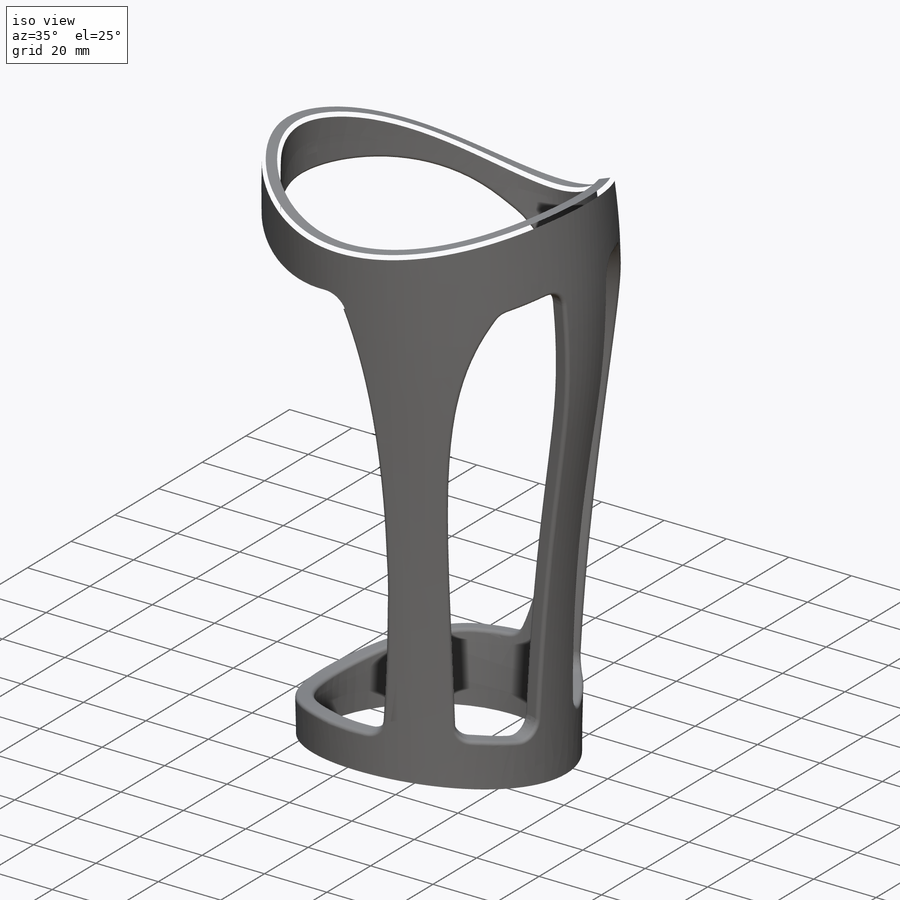
[diagram: iso view]
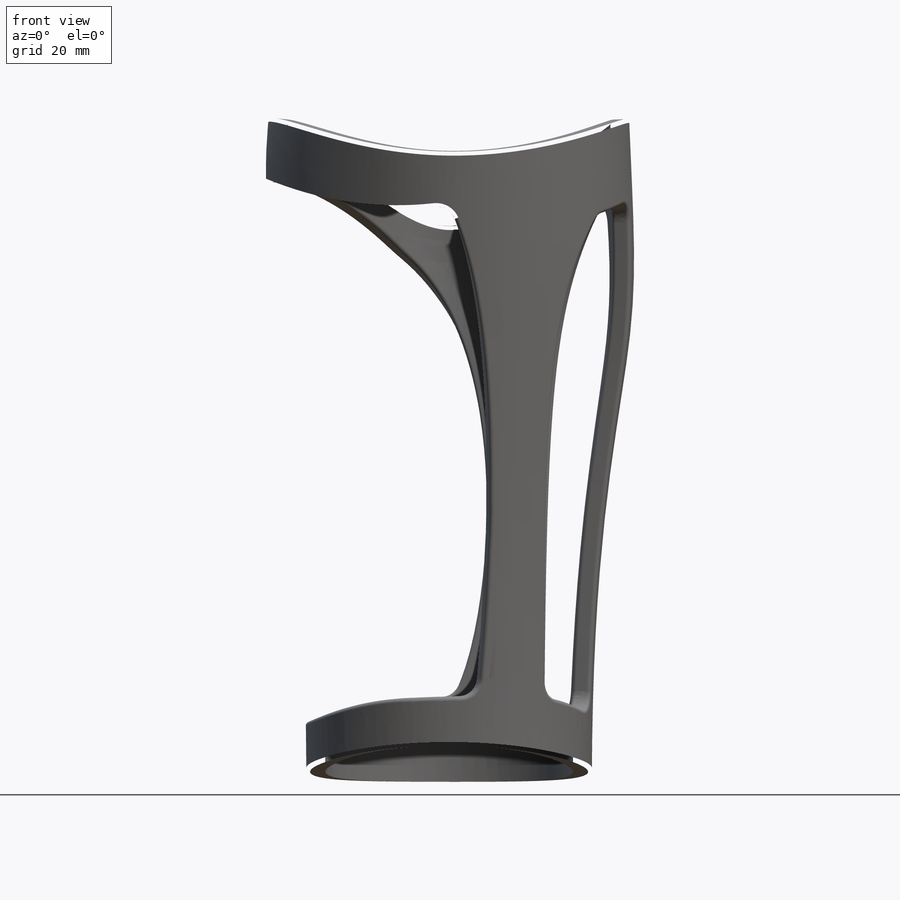
[diagram: front view]
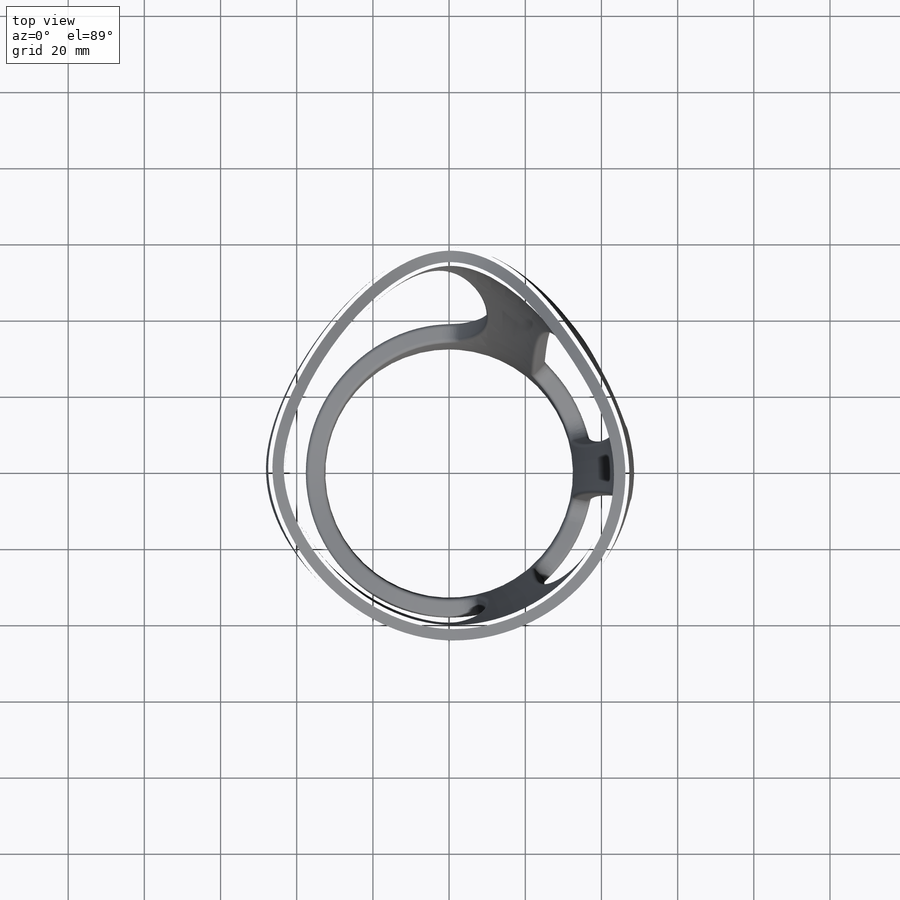
[diagram: top view]
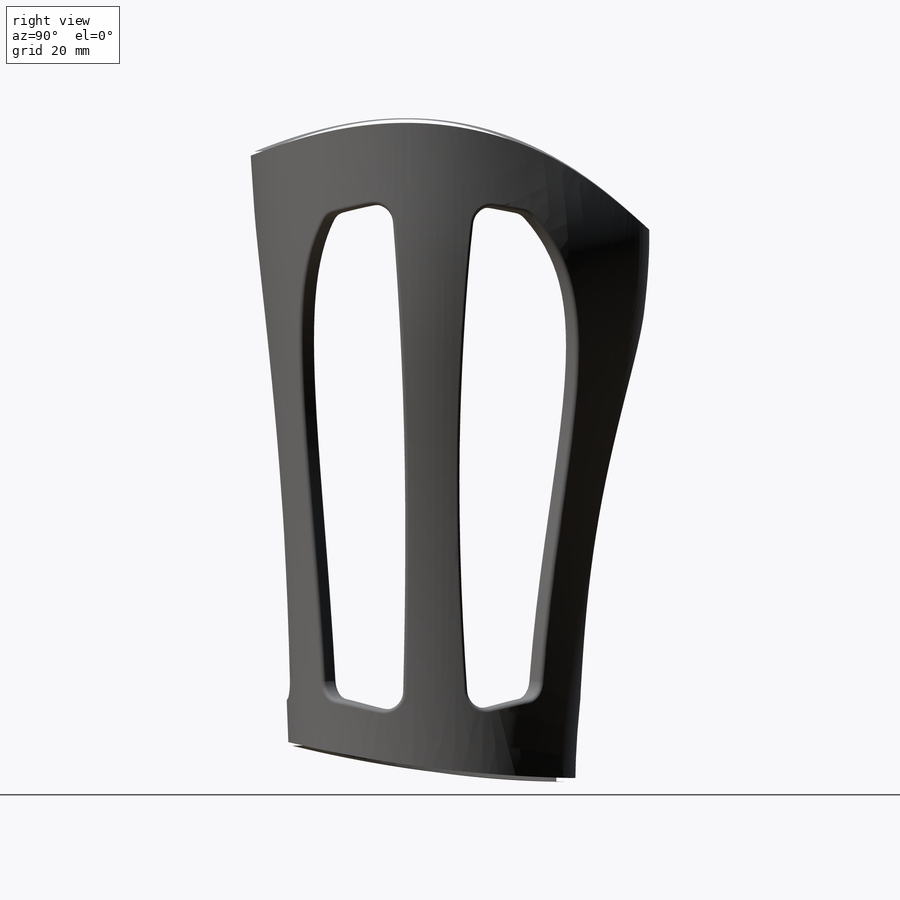
[diagram: right view]
SOLIDWORKS PART (.sldprt)
format: sldprt  version: not decoded by parser v0  size: 2,291,712 bytes
history: native  units: mm
features: plane x22, sketch x13, surface_op x7, fillet x4, material x1 + 1 further entry (+13 scaffold rows collapsed; 3 parser-record rows omitted)
feature tree (64):
  scaffold x13  (default folders/planes/origin — collapsed)
  material  "Material <nicht festgelegt>"
  plane  "Vorne"
  plane  "Oben"
  plane  "Rechts"
  plane  "Vorne-p-oberschenkel-hülle-v02"
  plane  "Oben-p-oberschenkel-hülle-v02"
  plane  "Rechts-p-oberschenkel-hülle-v02"
  plane  "Vorne-p-oberschenkel-v01-p-oberschenkel-hülle-v02"
  plane  "Oben-p-oberschenkel-v01-p-oberschenkel-hülle-v02"
  plane  "Rechts-p-oberschenkel-v01-p-oberschenkel-hülle-v02"  Offset=60mm
  plane  "Ebene6-p-oberschenkel-v01-p-oberschenkel-hülle-v02"  Offset=26.1mm
  plane  "Ebene8-p-oberschenkel-v01-p-oberschenkel-hülle-v02"  Offset=70mm
  plane  "Ebene9-p-oberschenkel-v01-p-oberschenkel-hülle-v02"  Offset=26.1mm
  plane  "Ebene10-p-oberschenkel-v01-p-oberschenkel-hülle-v02"  Offset=23.5mm
  plane  "Ebene11-p-oberschenkel-v01-p-oberschenkel-hülle-v02"  Offset=6mm
  plane  "Ebene12-p-oberschenkel-v01-p-oberschenkel-hülle-v02"  Offset=11mm
  plane  "Ebene13-p-oberschenkel-v01-p-oberschenkel-hülle-v02"  Offset=6.5mm
  plane  "Ebene14-p-oberschenkel-v01-p-oberschenkel-hülle-v02"  Offset=6.5mm
  plane  "Ebene15-p-oberschenkel-v01-p-oberschenkel-hülle-v02"  Offset=6.5mm
  plane  "Ebene26-p-oberschenkel-hülle-v02"  Offset=80mm
  plane  "Ebene27-p-oberschenkel-hülle-v02"  Offset=80mm
  "p-oberschenkel-hülle-v02"
  parser-record x3  (decoder bookkeeping rows leaked as tree rows — omitted from the tree; the rows remain in map.json)
  plane  "Ebene26"  Offset=260mm
  sketch  "Skizze106"  dims[D1=80.0mm]
  plane  "Ebene58"  Offset=210mm
  sketch  "Skizze107"  dims[D1=65.0mm]
  sketch  "Skizze108"
  sketch  "Skizze109"
  sketch  "Skizze110"  dims[D1=0.0mm]
  sketch  "Skizze116"
  surface_op  "Oberfläche-Trimmen2"
  sketch  "Skizze117"
  surface_op  "Oberfläche-Trimmen3"
  sketch  "Skizze121"
  surface_op  "Oberfläche-Trimmen7"
  sketch  "Skizze122"
  surface_op  "Oberfläche-Trimmen8"
  sketch  "Skizze124"  dims[D1=~59.651949mm D2=112.0mm]
  sketch  "Skizze125"
  surface_op  "Oberfläche-Trimmen10"
  sketch  "Skizze127"
  surface_op  "Oberfläche-Trimmen11"
  surface_op  "Oberfläche-Trimmen12"
  sketch  "Skizze133"  dims[D1=5.0mm]
  fillet  "Verrundung3"  Radius=5mm
  fillet  "Verrundung4"  Radius=5mm
  fillet  "Verrundung6"  Radius=100mm
  fillet  "Verrundung5"  Radius=1mm
decode coverage: 9 of 24 modeling features carry decoded parameters; 1 rows unclassified (native names shown)
note: ~ marks probable driven/reference dimensions
summary: [note 2] (x13 features) parser:v0:name_prior (class ref resolved by constrained assignment + name prior)
note: suppression state not decoded; provenance and decode notes live in map.json
